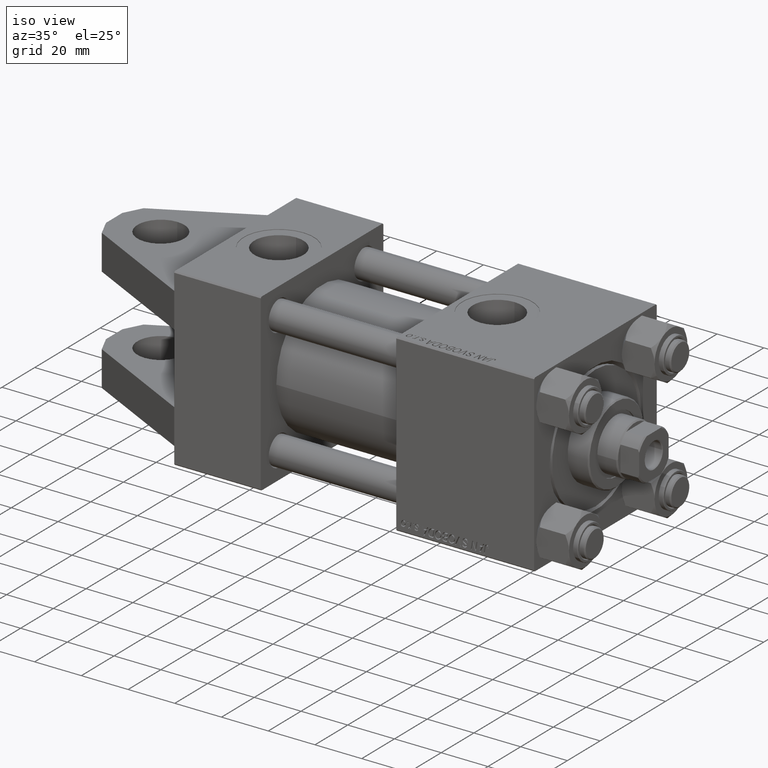
[diagram: clean part render]
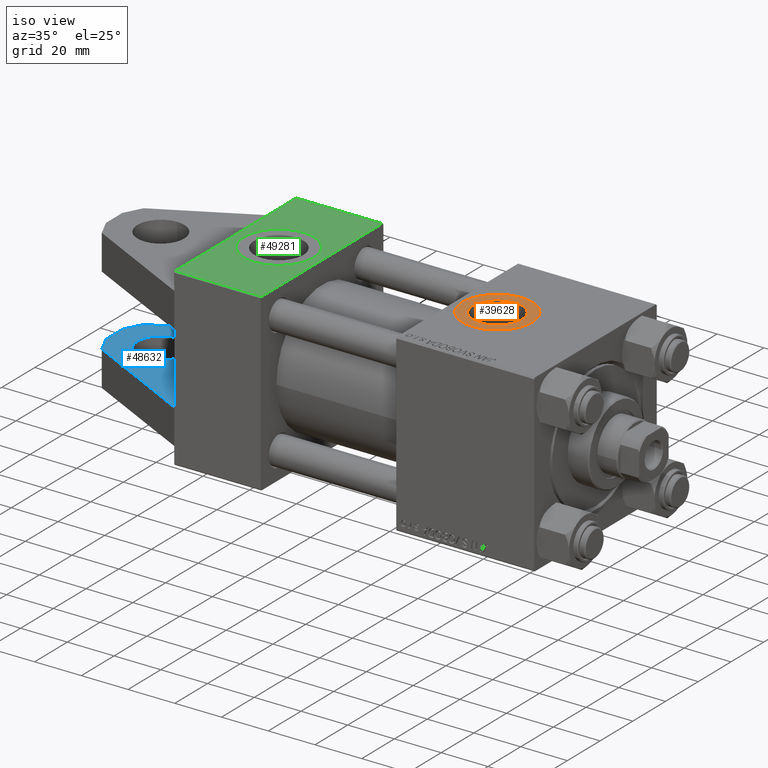
[diagram: same view with three faces highlighted in distinct colors, each labeled with its STEP entity id]
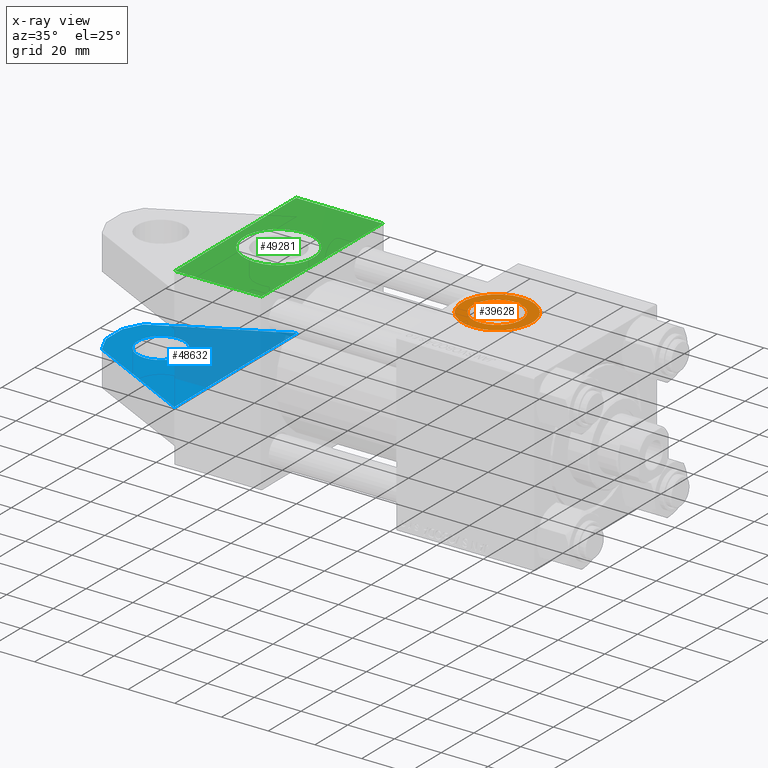
[diagram: x-ray of the same camera — body ghosted, the three highlighted faces saturated]
A machine part, iso view with three faces highlighted in distinct colors.
The next image is the same camera in x-ray (body ghosted, the three faces saturated) — at least one of them is partly hidden behind the body in this view.
Their STEP definitions:

[orange] entity #39628 — the highlighted planar face has unit normal (0, -0, 1).
#835 = FACE_OUTER_BOUND ( 'NONE', #43999, .T. ) ;
#966 = AXIS2_PLACEMENT_3D ( 'NONE', #23297, #15722, #50775 ) ;
#2134 = EDGE_LOOP ( 'NONE', ( #7853, #40926 ) ) ;
#4269 = DIRECTION ( 'NONE',  ( 0.000000000000000000, -1.000000000000000000, -8.673617379884036705E-17 ) ) ;
#4536 = CARTESIAN_POINT ( 'NONE',  ( 112.0000000000000000, -37.29999999999999716, 3.486794186713383443E-15 ) ) ;
#7853 = ORIENTED_EDGE ( 'NONE', *, *, #26660, .F. ) ;
#8420 = CARTESIAN_POINT ( 'NONE',  ( 112.0000000000000000, -37.29999999999999716, 3.486794186713383443E-15 ) ) ;
#9552 = AXIS2_PLACEMENT_3D ( 'NONE', #35612, #47910, #36114 ) ;
#10590 = CARTESIAN_POINT ( 'NONE',  ( 112.0000000000000000, -37.29999999999999716, -15.00000000000000888 ) ) ;
#11839 = EDGE_CURVE ( 'NONE', #19783, #16312, #23483, .T. ) ;
#13122 = DIRECTION ( 'NONE',  ( 0.000000000000000000, 8.673617379884036705E-17, -1.000000000000000000 ) ) ;
#14437 = ORIENTED_EDGE ( 'NONE', *, *, #11839, .T. ) ;
#14681 = CIRCLE ( 'NONE', #20527, 10.48000000000000043 ) ;
#15046 = ORIENTED_EDGE ( 'NONE', *, *, #48971, .T. ) ;
#15722 = DIRECTION ( 'NONE',  ( 0.000000000000000000, -1.000000000000000000, -8.673617379884036705E-17 ) ) ;
#16312 = VERTEX_POINT ( 'NONE', #43240 ) ;
#19523 = CIRCLE ( 'NONE', #9552, 10.48000000000000043 ) ;
#19783 = VERTEX_POINT ( 'NONE', #10590 ) ;
#20527 = AXIS2_PLACEMENT_3D ( 'NONE', #33197, #33966, #25354 ) ;
#21116 = CIRCLE ( 'NONE', #50365, 15.00000000000001243 ) ;
#22158 = EDGE_CURVE ( 'NONE', #37241, #31574, #19523, .T. ) ;
#23297 = CARTESIAN_POINT ( 'NONE',  ( 112.0000000000000000, -37.29999999999999716, 3.486794186713383443E-15 ) ) ;
#23483 = CIRCLE ( 'NONE', #966, 15.00000000000001243 ) ;
#25354 = DIRECTION ( 'NONE',  ( 0.000000000000000000, 0.000000000000000000, -1.000000000000000000 ) ) ;
#26660 = EDGE_CURVE ( 'NONE', #31574, #37241, #14681, .T. ) ;
#28284 = DIRECTION ( 'NONE',  ( 0.000000000000000000, -1.000000000000000000, -8.673617379884036705E-17 ) ) ;
#30424 = CARTESIAN_POINT ( 'NONE',  ( 112.0000000000000000, -37.29999999999999716, 10.48000000000000398 ) ) ;
#31574 = VERTEX_POINT ( 'NONE', #39191 ) ;
#33197 = CARTESIAN_POINT ( 'NONE',  ( 112.0000000000000000, -37.29999999999999716, 3.486794186713383443E-15 ) ) ;
#33234 = FACE_BOUND ( 'NONE', #2134, .T. ) ;
#33966 = DIRECTION ( 'NONE',  ( 0.000000000000000000, -1.000000000000000000, -8.673617379884036705E-17 ) ) ;
#35612 = CARTESIAN_POINT ( 'NONE',  ( 112.0000000000000000, -37.29999999999999716, 3.486794186713383443E-15 ) ) ;
#36114 = DIRECTION ( 'NONE',  ( 0.000000000000000000, 0.000000000000000000, -1.000000000000000000 ) ) ;
#37241 = VERTEX_POINT ( 'NONE', #30424 ) ;
#39191 = CARTESIAN_POINT ( 'NONE',  ( 112.0000000000000000, -37.29999999999999716, -10.47999999999999687 ) ) ;
#39628 = ADVANCED_FACE ( 'NONE', ( #33234, #835 ), #40852, .T. ) ;
#40852 = PLANE ( 'NONE',  #44284 ) ;
#40926 = ORIENTED_EDGE ( 'NONE', *, *, #22158, .F. ) ;
#43240 = CARTESIAN_POINT ( 'NONE',  ( 112.0000000000000000, -37.29999999999999716, 15.00000000000001421 ) ) ;
#43999 = EDGE_LOOP ( 'NONE', ( #14437, #15046 ) ) ;
#44284 = AXIS2_PLACEMENT_3D ( 'NONE', #8420, #28284, #13122 ) ;
#44540 = DIRECTION ( 'NONE',  ( 0.000000000000000000, 0.000000000000000000, -1.000000000000000000 ) ) ;
#47910 = DIRECTION ( 'NONE',  ( 0.000000000000000000, -1.000000000000000000, -8.673617379884036705E-17 ) ) ;
#48971 = EDGE_CURVE ( 'NONE', #16312, #19783, #21116, .T. ) ;
#50365 = AXIS2_PLACEMENT_3D ( 'NONE', #4536, #4269, #44540 ) ;
#50775 = DIRECTION ( 'NONE',  ( 0.000000000000000000, 0.000000000000000000, -1.000000000000000000 ) ) ;

[blue] entity #48632 — the highlighted planar face has unit normal (0, 0, -1).
#4388 = VECTOR ( 'NONE', #17243, 1000.000000000000000 ) ;
#5721 = CARTESIAN_POINT ( 'NONE',  ( 0.000000000000000000, 15.00000000000000000, 0.000000000000000000 ) ) ;
#6241 = DIRECTION ( 'NONE',  ( 0.000000000000000000, -0.000000000000000000, 1.000000000000000000 ) ) ;
#9606 = VERTEX_POINT ( 'NONE', #26165 ) ;
#9981 = EDGE_CURVE ( 'NONE', #34523, #24823, #46241, .T. ) ;
#10422 = DIRECTION ( 'NONE',  ( -0.000000000000000000, 1.000000000000000000, 0.000000000000000000 ) ) ;
#10506 = LINE ( 'NONE', #38203, #14382 ) ;
#11310 = LINE ( 'NONE', #19137, #49433 ) ;
#11571 = CARTESIAN_POINT ( 'NONE',  ( -52.00000000000000711, 15.00000000000000000, -5.000000000000007105 ) ) ;
#12343 = CARTESIAN_POINT ( 'NONE',  ( -32.00000000000000000, 15.00000000000000000, 9.999999999999992895 ) ) ;
#13345 = CARTESIAN_POINT ( 'NONE',  ( 0.000000000000000000, 15.00000000000000000, 37.50000000000000000 ) ) ;
#13377 = CARTESIAN_POINT ( 'NONE',  ( -52.00000000000000711, 15.00000000000000000, -5.000000000000007105 ) ) ;
#13479 = CARTESIAN_POINT ( 'NONE',  ( -32.00000000000000000, 15.00000000000000000, -10.00000000000000711 ) ) ;
#14382 = VECTOR ( 'NONE', #38462, 1000.000000000000000 ) ;
#15550 = EDGE_CURVE ( 'NONE', #24823, #9606, #20893, .T. ) ;
#16255 = VECTOR ( 'NONE', #45025, 1000.000000000000114 ) ;
#17243 = DIRECTION ( 'NONE',  ( 0.4566099510066921607, 0.000000000000000000, 0.8896669897448518105 ) ) ;
#17488 = PLANE ( 'NONE',  #23617 ) ;
#18162 = CARTESIAN_POINT ( 'NONE',  ( 0.000000000000000000, 15.00000000000000000, -37.50000000000000000 ) ) ;
#18254 = CARTESIAN_POINT ( 'NONE',  ( -52.00000000000000711, 15.00000000000000000, -5.000000000000007105 ) ) ;
#19137 = CARTESIAN_POINT ( 'NONE',  ( -48.15077811301358679, 15.00000000000000000, 12.49989272354909353 ) ) ;
#19688 = ORIENTED_EDGE ( 'NONE', *, *, #42757, .F. ) ;
#19922 = DIRECTION ( 'NONE',  ( 0.000000000000000000, 0.000000000000000000, -1.000000000000000000 ) ) ;
#20893 = LINE ( 'NONE', #32930, #4388 ) ;
#21063 = VERTEX_POINT ( 'NONE', #12343 ) ;
#21797 = DIRECTION ( 'NONE',  ( 0.000000000000000000, 0.000000000000000000, 1.000000000000000000 ) ) ;
#23145 = EDGE_CURVE ( 'NONE', #43884, #34523, #45542, .T. ) ;
#23392 = ORIENTED_EDGE ( 'NONE', *, *, #26189, .F. ) ;
#23576 = DIRECTION ( 'NONE',  ( 0.8875055616531780656, 0.000000000000000000, 0.4607970030660757943 ) ) ;
#23617 = AXIS2_PLACEMENT_3D ( 'NONE', #5721, #10422, #6241 ) ;
#23962 = AXIS2_PLACEMENT_3D ( 'NONE', #31795, #47758, #27886 ) ;
#24823 = VERTEX_POINT ( 'NONE', #39354 ) ;
#25643 = CIRCLE ( 'NONE', #23962, 10.00000000000000000 ) ;
#26165 = CARTESIAN_POINT ( 'NONE',  ( -48.15077811301358679, 15.00000000000000000, 12.49989272354909353 ) ) ;
#26189 = EDGE_CURVE ( 'NONE', #31492, #32733, #48693, .T. ) ;
#27886 = DIRECTION ( 'NONE',  ( 0.000000000000000000, 0.000000000000000000, 1.000000000000000000 ) ) ;
#29397 = EDGE_CURVE ( 'NONE', #21063, #31637, #25643, .T. ) ;
#30144 = EDGE_CURVE ( 'NONE', #31637, #21063, #39881, .T. ) ;
#31492 = VERTEX_POINT ( 'NONE', #13345 ) ;
#31637 = VERTEX_POINT ( 'NONE', #13479 ) ;
#31795 = CARTESIAN_POINT ( 'NONE',  ( -32.00000000000000000, 15.00000000000000000, -6.938893903907228378E-15 ) ) ;
#32733 = VERTEX_POINT ( 'NONE', #18162 ) ;
#32930 = CARTESIAN_POINT ( 'NONE',  ( -52.00000000000000711, 15.00000000000000000, 4.999999999999992895 ) ) ;
#34202 = DIRECTION ( 'NONE',  ( 0.000000000000000000, 0.000000000000000000, 1.000000000000000000 ) ) ;
#34523 = VERTEX_POINT ( 'NONE', #11571 ) ;
#35442 = ORIENTED_EDGE ( 'NONE', *, *, #15550, .F. ) ;
#36399 = CARTESIAN_POINT ( 'NONE',  ( 0.000000000000000000, 15.00000000000000000, 37.49999999999999289 ) ) ;
#37536 = ORIENTED_EDGE ( 'NONE', *, *, #30144, .T. ) ;
#37755 = DIRECTION ( 'NONE',  ( 0.000000000000000000, 1.000000000000000000, 0.000000000000000000 ) ) ;
#38203 = CARTESIAN_POINT ( 'NONE',  ( -48.43732805352595960, 15.00000000000000000, -12.64017464471899110 ) ) ;
#38462 = DIRECTION ( 'NONE',  ( -0.8896669897448514774, -0.000000000000000000, 0.4566099510066927158 ) ) ;
#39053 = CARTESIAN_POINT ( 'NONE',  ( -48.43732805352595960, 15.00000000000000000, -12.64017464471899110 ) ) ;
#39354 = CARTESIAN_POINT ( 'NONE',  ( -52.00000000000000711, 15.00000000000000000, 4.999999999999992895 ) ) ;
#39881 = CIRCLE ( 'NONE', #50735, 10.00000000000000000 ) ;
#41559 = FACE_BOUND ( 'NONE', #51543, .T. ) ;
#41736 = ORIENTED_EDGE ( 'NONE', *, *, #29397, .T. ) ;
#41936 = ORIENTED_EDGE ( 'NONE', *, *, #44009, .F. ) ;
#42074 = FACE_OUTER_BOUND ( 'NONE', #44155, .T. ) ;
#42757 = EDGE_CURVE ( 'NONE', #9606, #31492, #11310, .T. ) ;
#43513 = VECTOR ( 'NONE', #34202, 1000.000000000000000 ) ;
#43884 = VERTEX_POINT ( 'NONE', #39053 ) ;
#44009 = EDGE_CURVE ( 'NONE', #32733, #43884, #10506, .T. ) ;
#44155 = EDGE_LOOP ( 'NONE', ( #35442, #45145, #45046, #41936, #23392, #19688 ) ) ;
#45025 = DIRECTION ( 'NONE',  ( -0.4226182617406929465, -0.000000000000000000, 0.9063077870366529343 ) ) ;
#45046 = ORIENTED_EDGE ( 'NONE', *, *, #23145, .F. ) ;
#45145 = ORIENTED_EDGE ( 'NONE', *, *, #9981, .F. ) ;
#45542 = LINE ( 'NONE', #13377, #16255 ) ;
#45867 = CARTESIAN_POINT ( 'NONE',  ( -32.00000000000000000, 15.00000000000000000, -6.938893903907228378E-15 ) ) ;
#46241 = LINE ( 'NONE', #18254, #43513 ) ;
#47758 = DIRECTION ( 'NONE',  ( 0.000000000000000000, 1.000000000000000000, 0.000000000000000000 ) ) ;
#48632 = ADVANCED_FACE ( 'NONE', ( #42074, #41559 ), #17488, .F. ) ;
#48693 = LINE ( 'NONE', #36399, #49733 ) ;
#49433 = VECTOR ( 'NONE', #23576, 1000.000000000000114 ) ;
#49733 = VECTOR ( 'NONE', #19922, 1000.000000000000000 ) ;
#50735 = AXIS2_PLACEMENT_3D ( 'NONE', #45867, #37755, #21797 ) ;
#51543 = EDGE_LOOP ( 'NONE', ( #37536, #41736 ) ) ;

[green] entity #49281 — the highlighted planar face has unit normal (0, 0, -1).
#151 = DIRECTION ( 'NONE',  ( 0.000000000000000000, -1.000000000000000000, -8.673617379884036705E-17 ) ) ;
#1322 = CARTESIAN_POINT ( 'NONE',  ( 37.00000000000000000, -37.50000000000000711, 36.99999999999999289 ) ) ;
#1760 = DIRECTION ( 'NONE',  ( 0.000000000000000000, 9.251858538542971581E-17, -1.000000000000000000 ) ) ;
#2762 = DIRECTION ( 'NONE',  ( 0.000000000000000000, -1.000000000000000000, -8.673617379884036705E-17 ) ) ;
#3521 = VERTEX_POINT ( 'NONE', #3931 ) ;
#3792 = AXIS2_PLACEMENT_3D ( 'NONE', #25776, #2762, #27072 ) ;
#3931 = CARTESIAN_POINT ( 'NONE',  ( 37.00000000000000000, -37.50000000000000000, -37.00000000000003553 ) ) ;
#4273 = CARTESIAN_POINT ( 'NONE',  ( 18.50000000000000355, -37.50000000000000711, 14.99999999999999822 ) ) ;
#4406 = ORIENTED_EDGE ( 'NONE', *, *, #24791, .F. ) ;
#4500 = VECTOR ( 'NONE', #14909, 1000.000000000000000 ) ;
#4519 = ORIENTED_EDGE ( 'NONE', *, *, #15974, .T. ) ;
#9555 = CARTESIAN_POINT ( 'NONE',  ( 37.00000000000000000, -37.50000000000000711, 37.49999999999999289 ) ) ;
#10313 = FACE_BOUND ( 'NONE', #36068, .T. ) ;
#12356 = VERTEX_POINT ( 'NONE', #23638 ) ;
#13328 = ORIENTED_EDGE ( 'NONE', *, *, #21601, .T. ) ;
#13361 = DIRECTION ( 'NONE',  ( -1.000000000000000000, 0.000000000000000000, 0.000000000000000000 ) ) ;
#13936 = AXIS2_PLACEMENT_3D ( 'NONE', #35961, #151, #28386 ) ;
#14909 = DIRECTION ( 'NONE',  ( 0.000000000000000000, 9.251858538542971581E-17, -1.000000000000000000 ) ) ;
#15974 = EDGE_CURVE ( 'NONE', #12356, #3521, #17946, .T. ) ;
#17946 = LINE ( 'NONE', #46437, #23634 ) ;
#18580 = VECTOR ( 'NONE', #1760, 1000.000000000000000 ) ;
#18713 = DIRECTION ( 'NONE',  ( 1.000000000000000000, 0.000000000000000000, 0.000000000000000000 ) ) ;
#21544 = DIRECTION ( 'NONE',  ( -0.000000000000000000, 1.000000000000000000, 9.251858538542971581E-17 ) ) ;
#21601 = EDGE_CURVE ( 'NONE', #27905, #41877, #41095, .T. ) ;
#22377 = EDGE_CURVE ( 'NONE', #41877, #12356, #34517, .T. ) ;
#23634 = VECTOR ( 'NONE', #18713, 1000.000000000000000 ) ;
#23638 = CARTESIAN_POINT ( 'NONE',  ( 0.000000000000000000, -37.50000000000000000, -37.00000000000003553 ) ) ;
#24270 = ORIENTED_EDGE ( 'NONE', *, *, #28060, .F. ) ;
#24791 = EDGE_CURVE ( 'NONE', #50993, #35042, #34681, .T. ) ;
#25292 = LINE ( 'NONE', #49356, #18580 ) ;
#25776 = CARTESIAN_POINT ( 'NONE',  ( 18.50000000000000000, -37.50000000000000711, -3.469446951953614978E-15 ) ) ;
#27072 = DIRECTION ( 'NONE',  ( 0.000000000000000000, 0.000000000000000000, -1.000000000000000000 ) ) ;
#27905 = VERTEX_POINT ( 'NONE', #1322 ) ;
#28060 = EDGE_CURVE ( 'NONE', #35042, #50993, #33933, .T. ) ;
#28386 = DIRECTION ( 'NONE',  ( 0.000000000000000000, 0.000000000000000000, -1.000000000000000000 ) ) ;
#30303 = AXIS2_PLACEMENT_3D ( 'NONE', #9555, #21544, #33322 ) ;
#31927 = CARTESIAN_POINT ( 'NONE',  ( 0.000000000000000000, -37.50000000000000711, 36.99999999999999289 ) ) ;
#32458 = CARTESIAN_POINT ( 'NONE',  ( 18.50000000000000000, -37.50000000000000711, -15.00000000000000533 ) ) ;
#33322 = DIRECTION ( 'NONE',  ( 0.000000000000000000, -9.251858538542971581E-17, 1.000000000000000000 ) ) ;
#33933 = CIRCLE ( 'NONE', #13936, 15.00000000000000178 ) ;
#34093 = PLANE ( 'NONE',  #30303 ) ;
#34517 = LINE ( 'NONE', #42135, #4500 ) ;
#34681 = CIRCLE ( 'NONE', #3792, 15.00000000000000178 ) ;
#35042 = VERTEX_POINT ( 'NONE', #32458 ) ;
#35770 = EDGE_LOOP ( 'NONE', ( #48630, #4519, #37095, #13328 ) ) ;
#35961 = CARTESIAN_POINT ( 'NONE',  ( 18.50000000000000000, -37.50000000000000711, -3.469446951953614978E-15 ) ) ;
#36068 = EDGE_LOOP ( 'NONE', ( #24270, #4406 ) ) ;
#37095 = ORIENTED_EDGE ( 'NONE', *, *, #44263, .F. ) ;
#41095 = LINE ( 'NONE', #49184, #49594 ) ;
#41877 = VERTEX_POINT ( 'NONE', #31927 ) ;
#42135 = CARTESIAN_POINT ( 'NONE',  ( 0.000000000000000000, -37.50000000000000711, 37.49999999999999289 ) ) ;
#44263 = EDGE_CURVE ( 'NONE', #27905, #3521, #25292, .T. ) ;
#46437 = CARTESIAN_POINT ( 'NONE',  ( 37.00000000000000000, -37.50000000000000000, -37.00000000000003553 ) ) ;
#48630 = ORIENTED_EDGE ( 'NONE', *, *, #22377, .T. ) ;
#49184 = CARTESIAN_POINT ( 'NONE',  ( 37.00000000000000000, -37.50000000000000711, 36.99999999999999289 ) ) ;
#49281 = ADVANCED_FACE ( 'NONE', ( #10313, #49802 ), #34093, .F. ) ;
#49356 = CARTESIAN_POINT ( 'NONE',  ( 37.00000000000000000, -37.50000000000000711, 37.49999999999999289 ) ) ;
#49594 = VECTOR ( 'NONE', #13361, 1000.000000000000000 ) ;
#49802 = FACE_OUTER_BOUND ( 'NONE', #35770, .T. ) ;
#50993 = VERTEX_POINT ( 'NONE', #4273 ) ;